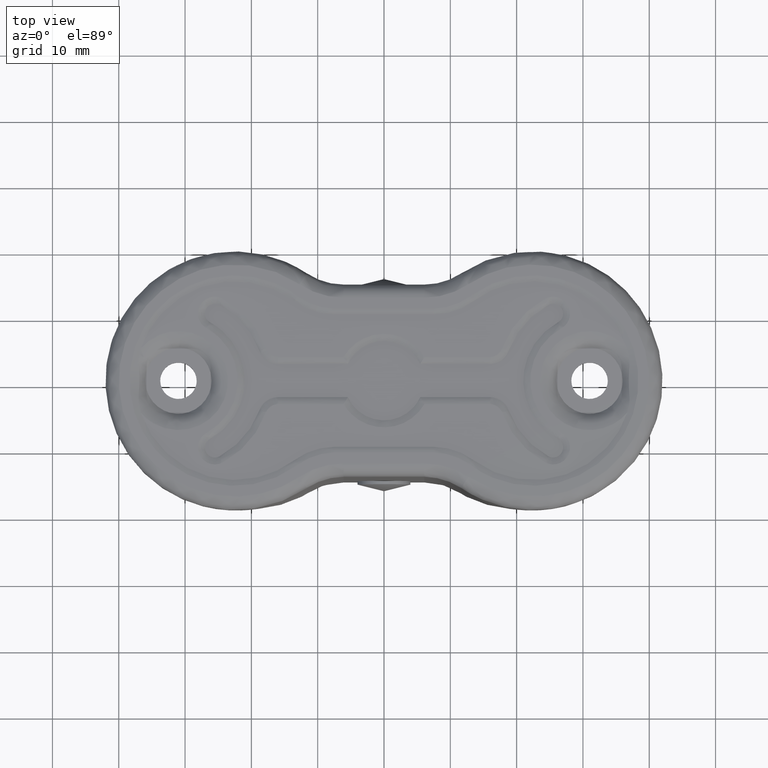
[diagram: clean part render]
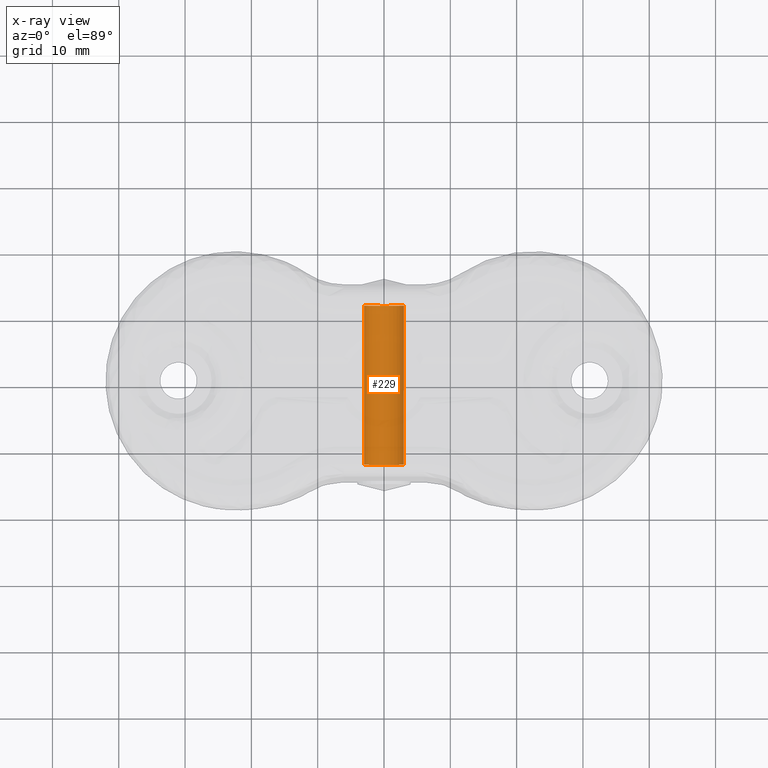
[diagram: x-ray — body ghosted, one internal face saturated and labeled with its STEP entity id]
A machine part, top view, then the same camera in x-ray: the body is ghosted and one INTERNAL B-rep face — a face not visible from any outside direction — is saturated and labeled: STEP entity #229.
In plain terms, the highlighted face is a freeform B-spline surface patch.
Its self-contained STEP definition (entity closure, byte-faithful):
#64=CARTESIAN_POINT('',(2.976798641466911,-12.0,-39.627615993682930));
#65=VERTEX_POINT('',#64);
#79=CARTESIAN_POINT('',(-2.999885769189386,-12.0,-40.026179606853503));
#80=VERTEX_POINT('',#79);
#96=CARTESIAN_POINT('',(-2.999885769189096,12.0,-40.026179606886693));
#97=VERTEX_POINT('',#96);
#98=CARTESIAN_POINT('',(-2.999885769189096,12.0,-40.026179606886693));
#99=CARTESIAN_POINT('',(-2.999885769189386,-12.0,-40.026179606853503));
#100=QUASI_UNIFORM_CURVE('',1,(#98,#99),.UNSPECIFIED.,.F.,.U.);
#101=EDGE_CURVE('',#97,#80,#100,.T.);
#120=CARTESIAN_POINT('',(2.976798634541868,12.0,-39.627615938324880));
#121=VERTEX_POINT('',#120);
#135=CARTESIAN_POINT('',(2.976798634541868,12.0,-39.627615938324880));
#136=CARTESIAN_POINT('',(2.976798641466911,-12.0,-39.627615993682930));
#137=QUASI_UNIFORM_CURVE('',1,(#135,#136),.UNSPECIFIED.,.F.,.U.);
#138=EDGE_CURVE('',#121,#65,#137,.T.);
#143=CARTESIAN_POINT('',(-2.999885769192513,12.600000000000000,-40.026179606495120));
#144=CARTESIAN_POINT('',(-2.973706162697392,12.600000000000005,-43.026065375687637));
#145=CARTESIAN_POINT('',(0.026179606495122,12.600000000000000,-42.999885769192517));
#146=CARTESIAN_POINT('',(3.026065375687634,12.600000000000005,-42.973706162697397));
#147=CARTESIAN_POINT('',(2.999885769192513,12.600000000000000,-39.973820393504880));
#148=CARTESIAN_POINT('',(2.998369293780826,12.599999999999998,-39.800049523125473));
#149=CARTESIAN_POINT('',(2.976798641476615,12.600000000000007,-39.627615993760507));
#150=CARTESIAN_POINT('',(-2.999885769192513,-12.615000000000011,-40.026179606495120));
#151=CARTESIAN_POINT('',(-2.973706162697392,-12.615000000000004,-43.026065375687637));
#152=CARTESIAN_POINT('',(0.026179606495122,-12.615000000000011,-42.999885769192517));
#153=CARTESIAN_POINT('',(3.026065375687634,-12.615000000000004,-42.973706162697397));
#154=CARTESIAN_POINT('',(2.999885769192513,-12.615000000000011,-39.973820393504880));
#155=CARTESIAN_POINT('',(2.998369293780826,-12.615000000000006,-39.800049523125473));
#156=CARTESIAN_POINT('',(2.976798641476615,-12.615000000000007,-39.627615993760507));
#164=(BOUNDED_SURFACE()B_SPLINE_SURFACE(2,1,((#143,#150),(#144,#151),(#145,#152),(#146,#153),(#147,#154),(#148,#155),(#149,#156)),.UNSPECIFIED.,.F.,.F.,.U.)B_SPLINE_SURFACE_WITH_KNOTS((3,2,2,3),(2,2),(0.0,4.970562748477144,9.941125496954287,10.338770516832460),(0.0,25.215000000000011),.UNSPECIFIED.)GEOMETRIC_REPRESENTATION_ITEM()RATIONAL_B_SPLINE_SURFACE(((1.0,1.0),(0.707106781186548,0.707106781186548),(1.0,1.0),(0.707106781186548,0.707106781186548),(1.0,1.0),(0.976568542494924,0.976568542494924),(0.956886118190660,0.956886118190660)))REPRESENTATION_ITEM('')SURFACE());
#165=CARTESIAN_POINT('',(0.0,-12.0,-43.0));
#166=VERTEX_POINT('',#165);
#167=CARTESIAN_POINT('',(2.976798641466911,-11.999999999999996,-39.627615993682937));
#168=CARTESIAN_POINT('',(2.999999999999999,-11.999999999999995,-39.813085217321024));
#169=CARTESIAN_POINT('',(3.0,-12.0,-40.0));
#170=CARTESIAN_POINT('',(3.0,-12.0,-42.999999999999993));
#171=CARTESIAN_POINT('',(0.0,-12.0,-43.0));
#179=(BOUNDED_CURVE()B_SPLINE_CURVE(2,(#167,#168,#169,#170,#171),.UNSPECIFIED.,.F.,.U.)B_SPLINE_CURVE_WITH_KNOTS((3,2,3),(0.228526071020509,0.250000000000000,0.500000000000000),.UNSPECIFIED.)CURVE()GEOMETRIC_REPRESENTATION_ITEM()RATIONAL_B_SPLINE_CURVE((0.954005430257660,0.974841727282501,1.0,0.707106781186548,1.0))REPRESENTATION_ITEM(''));
#180=EDGE_CURVE('',#65,#166,#179,.T.);
#181=ORIENTED_EDGE('',*,*,#180,.F.);
#182=ORIENTED_EDGE('',*,*,#138,.F.);
#183=CARTESIAN_POINT('',(0.0,12.0,-43.0));
#184=VERTEX_POINT('',#183);
#185=CARTESIAN_POINT('',(0.0,12.0,-43.0));
#186=CARTESIAN_POINT('',(3.0,12.0,-42.999999999999993));
#187=CARTESIAN_POINT('',(3.0,12.0,-40.0));
#188=CARTESIAN_POINT('',(3.000000000000000,12.0,-39.813085161314937));
#189=CARTESIAN_POINT('',(2.976798634541868,12.000000000000004,-39.627615938324887));
#197=(BOUNDED_CURVE()B_SPLINE_CURVE(2,(#185,#186,#187,#188,#189),.UNSPECIFIED.,.F.,.U.)B_SPLINE_CURVE_WITH_KNOTS((3,2,3),(0.0,0.250000000000000,0.271473935251943),.UNSPECIFIED.)CURVE()GEOMETRIC_REPRESENTATION_ITEM()RATIONAL_B_SPLINE_CURVE((1.0,0.707106781186548,1.0,0.974841719933868,0.954005418085258))REPRESENTATION_ITEM(''));
#198=EDGE_CURVE('',#184,#121,#197,.T.);
#199=ORIENTED_EDGE('',*,*,#198,.F.);
#200=CARTESIAN_POINT('',(-2.999885769189096,12.000000000000002,-40.026179606886700));
#201=CARTESIAN_POINT('',(-2.973933631008533,12.0,-42.999999999999993));
#202=CARTESIAN_POINT('',(0.0,12.0,-43.0));
#210=(BOUNDED_CURVE()B_SPLINE_CURVE(2,(#200,#201,#202),.UNSPECIFIED.,.F.,.U.)B_SPLINE_CURVE_WITH_KNOTS((3,3),(0.751539894380971,1.0),.UNSPECIFIED.)CURVE()GEOMETRIC_REPRESENTATION_ITEM()RATIONAL_B_SPLINE_CURVE((0.996414027993987,0.708910879674049,1.0))REPRESENTATION_ITEM(''));
#211=EDGE_CURVE('',#97,#184,#210,.T.);
#212=ORIENTED_EDGE('',*,*,#211,.F.);
#213=ORIENTED_EDGE('',*,*,#101,.T.);
#214=CARTESIAN_POINT('',(0.0,-12.0,-43.0));
#215=CARTESIAN_POINT('',(-2.973933631074351,-12.000000000000002,-43.0));
#216=CARTESIAN_POINT('',(-2.999885769189386,-12.000000000000002,-40.026179606853496));
#224=(BOUNDED_CURVE()B_SPLINE_CURVE(2,(#214,#215,#216),.UNSPECIFIED.,.F.,.U.)B_SPLINE_CURVE_WITH_KNOTS((3,3),(0.500000000000000,0.748460105622927),.UNSPECIFIED.)CURVE()GEOMETRIC_REPRESENTATION_ITEM()RATIONAL_B_SPLINE_CURVE((1.0,0.708910879669482,0.996414028003008))REPRESENTATION_ITEM(''));
#225=EDGE_CURVE('',#166,#80,#224,.T.);
#226=ORIENTED_EDGE('',*,*,#225,.F.);
#227=EDGE_LOOP('',(#181,#182,#199,#212,#213,#226));
#228=FACE_OUTER_BOUND('',#227,.T.);
#229=ADVANCED_FACE('',(#228),#164,.F.);